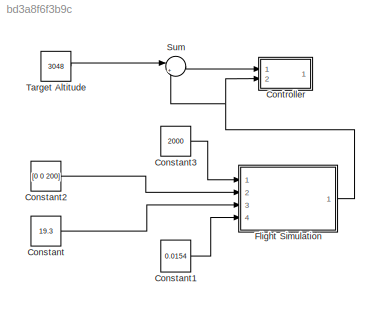
MODEL slx_bd3a8f6f3b9c
KIND model
CONFIG AbsTol = auto
CONFIG FixedStep = auto
CONFIG MaxStep = auto
CONFIG MinStep = auto
CONFIG RelTol = 1e-3
CONFIG SampleTimeConstraint = Unconstrained
CONFIG Solver = VariableStepAuto
CONFIG SolverMode = Auto
CONFIG SolverName = VariableStepAuto
CONFIG StartTime = 0.0
CONFIG StopTime = 10.0
BLOCK [Constant] Constant
  Value = 19.3
BLOCK [Constant] Constant1
  Value = 0.0154
BLOCK [Constant] Constant2
  Value = [0 0 200]
BLOCK [Constant] Constant3
  Value = 2000
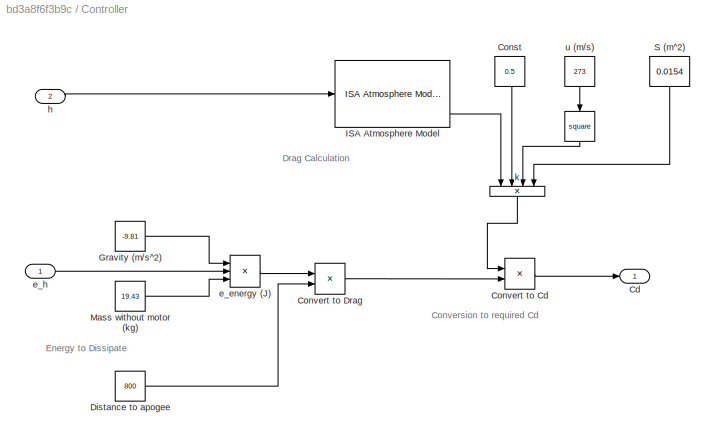
BLOCK [SubSystem] Controller
  Ports = [2, 1]
  RequestExecContextInheritance = off
  Variant = off
BLOCK [Math] Controller/ 
  Operator = square
  Ports = [1, 1]
BLOCK [Outport] Controller/Cd
  IconDisplay = Port number
BLOCK [Constant] Controller/Const
  Value = 0.5
BLOCK [Product] Controller/Convert to Cd
  InputSameDT = off
  Inputs = /*
  OutDataTypeStr = Inherit: Inherit via internal rule
  Ports = [2, 1]
  RndMeth = Floor
  SaturateOnIntegerOverflow = off
BLOCK [Product] Controller/Convert to Drag
  InputSameDT = off
  Inputs = */
  OutDataTypeStr = Inherit: Inherit via internal rule
  Ports = [2, 1]
  RndMeth = Floor
  SaturateOnIntegerOverflow = off
BLOCK [Constant] Controller/Distance to apogee
  Value = 800
BLOCK [Constant] Controller/Gravity (m//s^2)
  Value = -9.81
BLOCK [Reference] Controller/ISA Atmosphere Model  REF=aerolibatmos2/ISA Atmosphere Model
  Ports = [1, 4]
  SourceBlock = aerolibatmos2/ISA Atmosphere Model
  SourceType = International Standard Atmosphere Model
BLOCK [Constant] Controller/Mass without motor (kg)
  Value = 19.43
BLOCK [Constant] Controller/S (m^2)
  Value = 0.0154
BLOCK [Product] Controller/e_energy (J)
  InputSameDT = off
  Inputs = 3
  OutDataTypeStr = Inherit: Inherit via internal rule
  Ports = [3, 1]
  RndMeth = Floor
  SaturateOnIntegerOverflow = off
BLOCK [Inport] Controller/e_h 
  IconDisplay = Port number
BLOCK [Inport] Controller/h
  IconDisplay = Port number
  Port = 2
BLOCK [Product] Controller/k
  InputSameDT = off
  Inputs = 4
  OutDataTypeStr = Inherit: Inherit via internal rule
  Ports = [4, 1]
  RndMeth = Floor
  SaturateOnIntegerOverflow = off
BLOCK [Constant] Controller/u (m//s)
  Value = 273
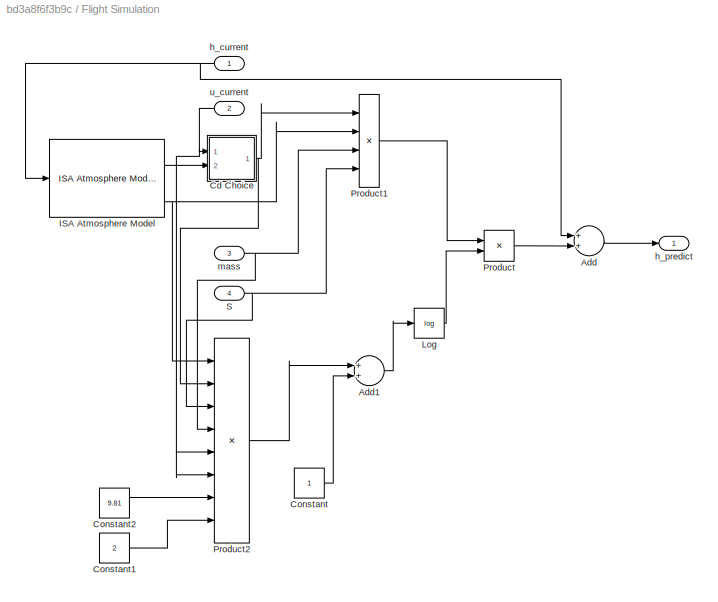
BLOCK [SubSystem] Flight Simulation
  Ports = [4, 1]
  RequestExecContextInheritance = off
  Variant = off
BLOCK [Math] Flight Simulation/ Log
  Operator = log
  Ports = [1, 1]
BLOCK [Sum] Flight Simulation/Add
  InputSameDT = off
  OutDataTypeStr = Inherit: Inherit via internal rule
  Ports = [2, 1]
  SaturateOnIntegerOverflow = off
BLOCK [Sum] Flight Simulation/Add1
  InputSameDT = off
  OutDataTypeStr = Inherit: Inherit via internal rule
  Ports = [2, 1]
  SaturateOnIntegerOverflow = off
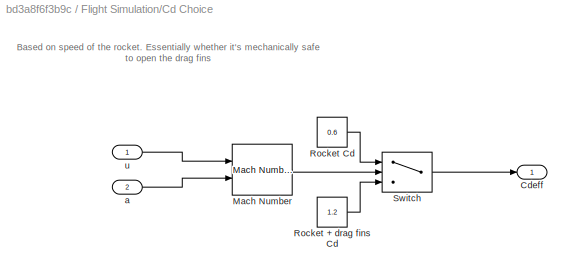
BLOCK [SubSystem] Flight Simulation/Cd Choice
  Ports = [2, 1]
  RequestExecContextInheritance = off
  Variant = off
BLOCK [Outport] Flight Simulation/Cd Choice/Cdeff
  IconDisplay = Port number
BLOCK [Reference] Flight Simulation/Cd Choice/Mach Number  REF=aerolibasang/Mach Number
  Ports = [2, 1]
  SourceBlock = aerolibasang/Mach Number
  SourceType = Mach Number
BLOCK [Constant] Flight Simulation/Cd Choice/Rocket + drag fins Cd
  Value = 1.2
BLOCK [Constant] Flight Simulation/Cd Choice/Rocket Cd
  Value = 0.6
BLOCK [Switch] Flight Simulation/Cd Choice/Switch
  Criteria = u2 > Threshold
  InputSameDT = off
  SaturateOnIntegerOverflow = off
  Threshold = 0.6
BLOCK [Inport] Flight Simulation/Cd Choice/a
  IconDisplay = Port number
  Port = 2
BLOCK [Inport] Flight Simulation/Cd Choice/u
  IconDisplay = Port number
BLOCK [Constant] Flight Simulation/Constant
BLOCK [Constant] Flight Simulation/Constant1
  Value = 2
BLOCK [Constant] Flight Simulation/Constant2
  Value = 9.81
BLOCK [Reference] Flight Simulation/ISA Atmosphere Model  REF=aerolibatmos2/ISA Atmosphere Model
  Ports = [1, 4]
  SourceBlock = aerolibatmos2/ISA Atmosphere Model
  SourceType = International Standard Atmosphere Model
BLOCK [Product] Flight Simulation/Product
  InputSameDT = off
  OutDataTypeStr = Inherit: Inherit via internal rule
  Ports = [2, 1]
  RndMeth = Floor
  SaturateOnIntegerOverflow = off
BLOCK [Product] Flight Simulation/Product1
  InputSameDT = off
  Inputs = //*/
  OutDataTypeStr = Inherit: Inherit via internal rule
  Ports = [4, 1]
  RndMeth = Floor
  SaturateOnIntegerOverflow = off
BLOCK [Product] Flight Simulation/Product2
  InputSameDT = off
  Inputs = ***/**//
  OutDataTypeStr = Inherit: Inherit via internal rule
  Ports = [8, 1]
  RndMeth = Floor
  SaturateOnIntegerOverflow = off
BLOCK [Inport] Flight Simulation/S
  IconDisplay = Port number
  Port = 4
BLOCK [Inport] Flight Simulation/h_current
  IconDisplay = Port number
BLOCK [Outport] Flight Simulation/h_predict
  IconDisplay = Port number
BLOCK [Inport] Flight Simulation/mass
  IconDisplay = Port number
  Port = 3
BLOCK [Inport] Flight Simulation/u_current
  IconDisplay = Port number
  Port = 2
BLOCK [Sum] Sum
  IconShape = round
  InputSameDT = off
  Inputs = |+-
  OutDataTypeStr = Inherit: Inherit via internal rule
  Ports = [2, 1]
  SaturateOnIntegerOverflow = off
BLOCK [Constant] Target Altitude
  Value = 3048
ANNOTATION Controller: Energy to Dissipate
ANNOTATION Controller: Conversion to required Cd
ANNOTATION Controller: Drag Calculation
ANNOTATION Flight Simulation/Cd Choice: Based on speed of the rocket. Essentially whether it's mechanically safe to open the drag fins
LINE Constant1:1 -> Flight Simulation:4
LINE Constant2:1 -> Flight Simulation:2
LINE Constant3:1 -> Flight Simulation:1
LINE Constant:1 -> Flight Simulation:3
LINE Controller/ :1 -> Controller/k:3
LINE Controller/Const:1 -> Controller/k:2
LINE Controller/Convert to Cd:1 -> Controller/Cd:1
LINE Controller/Convert to Drag:1 -> Controller/Convert to Cd:2
LINE Controller/Distance to apogee:1 -> Controller/Convert to Drag:2
LINE Controller/Gravity (m//s^2):1 -> Controller/e_energy (J):1
LINE Controller/ISA Atmosphere Model:4 -> Controller/k:1
LINE Controller/Mass without motor (kg):1 -> Controller/e_energy (J):3
LINE Controller/S (m^2):1 -> Controller/k:4
LINE Controller/e_energy (J):1 -> Controller/Convert to Drag:1
LINE Controller/e_h :1 -> Controller/e_energy (J):2
LINE Controller/h:1 -> Controller/ISA Atmosphere Model:1
LINE Controller/k:1 -> Controller/Convert to Cd:1
LINE Controller/u (m//s):1 -> Controller/ :1
LINE Flight Simulation/ Log:1 -> Flight Simulation/Product:2
LINE Flight Simulation/Add1:1 -> Flight Simulation/ Log:1
LINE Flight Simulation/Add:1 -> Flight Simulation/h_predict:1
LINE Flight Simulation/Cd Choice/Mach Number:1 -> Flight Simulation/Cd Choice/Switch:2
LINE Flight Simulation/Cd Choice/Rocket + drag fins Cd:1 -> Flight Simulation/Cd Choice/Switch:3
LINE Flight Simulation/Cd Choice/Rocket Cd:1 -> Flight Simulation/Cd Choice/Switch:1
LINE Flight Simulation/Cd Choice/Switch:1 -> Flight Simulation/Cd Choice/Cdeff:1
LINE Flight Simulation/Cd Choice/a:1 -> Flight Simulation/Cd Choice/Mach Number:2
LINE Flight Simulation/Cd Choice/u:1 -> Flight Simulation/Cd Choice/Mach Number:1
NET Flight Simulation/Cd Choice:1 -> Flight Simulation/Product1:1, Flight Simulation/Product2:2
LINE Flight Simulation/Constant1:1 -> Flight Simulation/Product2:8
LINE Flight Simulation/Constant2:1 -> Flight Simulation/Product2:7
LINE Flight Simulation/Constant:1 -> Flight Simulation/Add1:2
LINE Flight Simulation/ISA Atmosphere Model:2 -> Flight Simulation/Cd Choice:2
NET Flight Simulation/ISA Atmosphere Model:4 -> Flight Simulation/Product1:2, Flight Simulation/Product2:1
LINE Flight Simulation/Product1:1 -> Flight Simulation/Product:1
LINE Flight Simulation/Product2:1 -> Flight Simulation/Add1:1
LINE Flight Simulation/Product:1 -> Flight Simulation/Add:2
NET Flight Simulation/S:1 -> Flight Simulation/Product1:4, Flight Simulation/Product2:3
NET Flight Simulation/h_current:1 -> Flight Simulation/Add:1, Flight Simulation/ISA Atmosphere Model:1
NET Flight Simulation/mass:1 -> Flight Simulation/Product1:3, Flight Simulation/Product2:4
NET Flight Simulation/u_current:1 -> Flight Simulation/Cd Choice:1, Flight Simulation/Product2:5, Flight Simulation/Product2:6
NET Flight Simulation:1 -> Controller:2, Sum:2
LINE Sum:1 -> Controller:1
LINE Target Altitude:1 -> Sum:1
note: NET lines group one-source signal fan-out (src -> all destinations, sorted); 1:1 wires keep LINE
